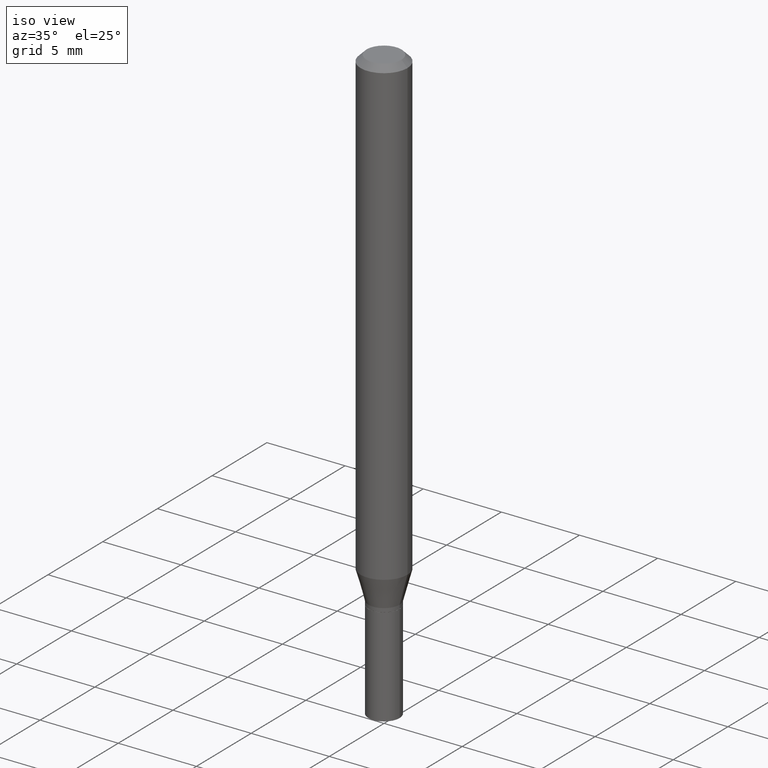
[diagram: clean part render]
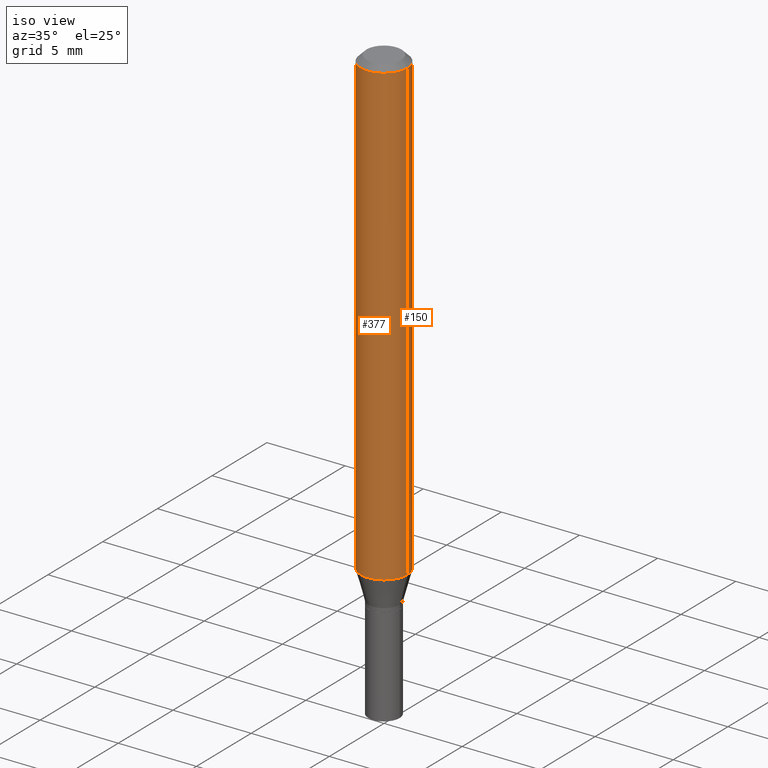
[diagram: same view with one multi-face feature highlighted, each face labeled with its STEP entity id]
A machine part, iso view. The highlighted faces form ONE feature: a constant-radius fillet chain: 2 tangent blend faces with common blend radius 1.4999 mm. The faces share edges in the B-rep.
Their STEP definitions:
[1] entity #377 (Cylinder):
#16 = CARTESIAN_POINT ( 'NONE',  ( 0.05904999999999999832, -4.492065169680809250E-15, -1.168478599090893244 ) ) ;
#19 = DIRECTION ( 'NONE',  ( 1.000000000000000000, -6.982962677686266711E-15, 0.000000000000000000 ) ) ;
#23 = AXIS2_PLACEMENT_3D ( 'NONE', #206, #232, #19 ) ;
#25 = DIRECTION ( 'NONE',  ( 1.000000000000000000, -6.982962677686267499E-15, 4.876176775795936353E-29 ) ) ;
#55 = DIRECTION ( 'NONE',  ( -2.445468806185136597E-29, 3.491481338843145583E-15, 1.000000000000000000 ) ) ;
#59 = VERTEX_POINT ( 'NONE', #16 ) ;
#60 = CARTESIAN_POINT ( 'NONE',  ( 0.000000000000000000, 0.000000000000000000, 0.000000000000000000 ) ) ;
#68 = DIRECTION ( 'NONE',  ( -2.445468806185136877E-29, 3.491481338843145188E-15, 1.000000000000000000 ) ) ;
#83 = VERTEX_POINT ( 'NONE', #98 ) ;
#98 = CARTESIAN_POINT ( 'NONE',  ( -0.05905000000000002608, -1.646471236356701803E-15, -0.01499999999999999944 ) ) ;
#100 = DIRECTION ( 'NONE',  ( 1.000000000000000000, -6.982962677686273021E-15, 0.000000000000000000 ) ) ;
#129 = AXIS2_PLACEMENT_3D ( 'NONE', #60, #352, #25 ) ;
#151 = CARTESIAN_POINT ( 'NONE',  ( 0.05905000000000001914, -4.647161662000214077E-16, -0.01499999999999999944 ) ) ;
#161 = ORIENTED_EDGE ( 'NONE', *, *, #254, .F. ) ;
#164 = VECTOR ( 'NONE', #68, 39.37007874015748143 ) ;
#166 = CYLINDRICAL_SURFACE ( 'NONE', #129, 0.05905000000000000526 ) ;
#206 = CARTESIAN_POINT ( 'NONE',  ( 3.668203209277705088E-31, -5.237222008264718399E-17, -0.01499999999999999944 ) ) ;
#226 = CIRCLE ( 'NONE', #23, 0.05905000000000001914 ) ;
#232 = DIRECTION ( 'NONE',  ( -2.445468806185136597E-29, 3.491481338843145583E-15, 1.000000000000000000 ) ) ;
#237 = EDGE_CURVE ( 'NONE', #409, #59, #261, .T. ) ;
#254 = EDGE_CURVE ( 'NONE', #409, #83, #386, .T. ) ;
#261 = CIRCLE ( 'NONE', #432, 0.05904999999999999832 ) ;
#267 = EDGE_LOOP ( 'NONE', ( #161, #273, #448, #339 ) ) ;
#269 = EDGE_CURVE ( 'NONE', #83, #444, #226, .T. ) ;
#273 = ORIENTED_EDGE ( 'NONE', *, *, #237, .T. ) ;
#280 = FACE_OUTER_BOUND ( 'NONE', #267, .T. ) ;
#292 = CARTESIAN_POINT ( 'NONE',  ( 0.05905000000000000526, -4.123439461173741313E-16, 2.879382386107500571E-30 ) ) ;
#339 = ORIENTED_EDGE ( 'NONE', *, *, #269, .F. ) ;
#346 = CARTESIAN_POINT ( 'NONE',  ( -0.05905000000000000526, 4.195754854663391971E-16, -2.904631170795522242E-30 ) ) ;
#352 = DIRECTION ( 'NONE',  ( -2.445468806185136597E-29, 3.491481338843145583E-15, 1.000000000000000000 ) ) ;
#377 = ADVANCED_FACE ( 'NONE', ( #280 ), #166, .T. ) ;
#386 = LINE ( 'NONE', #346, #466 ) ;
#409 = VERTEX_POINT ( 'NONE', #421 ) ;
#419 = CARTESIAN_POINT ( 'NONE',  ( 2.857477964771687293E-29, -4.079721223563434330E-15, -1.168478599090893244 ) ) ;
#421 = CARTESIAN_POINT ( 'NONE',  ( -0.05904999999999999832, -3.660145738097095626E-15, -1.168478599090893244 ) ) ;
#428 = EDGE_CURVE ( 'NONE', #59, #444, #464, .T. ) ;
#432 = AXIS2_PLACEMENT_3D ( 'NONE', #419, #55, #100 ) ;
#444 = VERTEX_POINT ( 'NONE', #151 ) ;
#445 = DIRECTION ( 'NONE',  ( -2.445468806185136877E-29, 3.491481338843145188E-15, 1.000000000000000000 ) ) ;
#448 = ORIENTED_EDGE ( 'NONE', *, *, #428, .T. ) ;
#464 = LINE ( 'NONE', #292, #164 ) ;
#466 = VECTOR ( 'NONE', #445, 39.37007874015748143 ) ;
[2] entity #150 (Cylinder):
#2 = EDGE_LOOP ( 'NONE', ( #207, #233, #335, #125 ) ) ;
#16 = CARTESIAN_POINT ( 'NONE',  ( 0.05904999999999999832, -4.492065169680809250E-15, -1.168478599090893244 ) ) ;
#35 = DIRECTION ( 'NONE',  ( -2.445468806185136597E-29, 3.491481338843145583E-15, 1.000000000000000000 ) ) ;
#59 = VERTEX_POINT ( 'NONE', #16 ) ;
#64 = DIRECTION ( 'NONE',  ( 1.000000000000000000, -6.982962677686266711E-15, 0.000000000000000000 ) ) ;
#68 = DIRECTION ( 'NONE',  ( -2.445468806185136877E-29, 3.491481338843145188E-15, 1.000000000000000000 ) ) ;
#83 = VERTEX_POINT ( 'NONE', #98 ) ;
#86 = CIRCLE ( 'NONE', #459, 0.05905000000000001914 ) ;
#98 = CARTESIAN_POINT ( 'NONE',  ( -0.05905000000000002608, -1.646471236356701803E-15, -0.01499999999999999944 ) ) ;
#101 = CARTESIAN_POINT ( 'NONE',  ( 3.668203209277705088E-31, -5.237222008264718399E-17, -0.01499999999999999944 ) ) ;
#125 = ORIENTED_EDGE ( 'NONE', *, *, #428, .F. ) ;
#150 = ADVANCED_FACE ( 'NONE', ( #321 ), #247, .T. ) ;
#151 = CARTESIAN_POINT ( 'NONE',  ( 0.05905000000000001914, -4.647161662000214077E-16, -0.01499999999999999944 ) ) ;
#164 = VECTOR ( 'NONE', #68, 39.37007874015748143 ) ;
#182 = DIRECTION ( 'NONE',  ( 1.000000000000000000, -6.982962677686273021E-15, 0.000000000000000000 ) ) ;
#185 = AXIS2_PLACEMENT_3D ( 'NONE', #357, #35, #359 ) ;
#186 = AXIS2_PLACEMENT_3D ( 'NONE', #210, #396, #182 ) ;
#197 = CIRCLE ( 'NONE', #186, 0.05904999999999999832 ) ;
#207 = ORIENTED_EDGE ( 'NONE', *, *, #453, .T. ) ;
#210 = CARTESIAN_POINT ( 'NONE',  ( 2.857477964771687293E-29, -4.079721223563434330E-15, -1.168478599090893244 ) ) ;
#233 = ORIENTED_EDGE ( 'NONE', *, *, #254, .T. ) ;
#247 = CYLINDRICAL_SURFACE ( 'NONE', #185, 0.05905000000000000526 ) ;
#254 = EDGE_CURVE ( 'NONE', #409, #83, #386, .T. ) ;
#291 = EDGE_CURVE ( 'NONE', #444, #83, #86, .T. ) ;
#292 = CARTESIAN_POINT ( 'NONE',  ( 0.05905000000000000526, -4.123439461173741313E-16, 2.879382386107500571E-30 ) ) ;
#321 = FACE_OUTER_BOUND ( 'NONE', #2, .T. ) ;
#335 = ORIENTED_EDGE ( 'NONE', *, *, #291, .F. ) ;
#346 = CARTESIAN_POINT ( 'NONE',  ( -0.05905000000000000526, 4.195754854663391971E-16, -2.904631170795522242E-30 ) ) ;
#357 = CARTESIAN_POINT ( 'NONE',  ( 0.000000000000000000, 0.000000000000000000, 0.000000000000000000 ) ) ;
#359 = DIRECTION ( 'NONE',  ( 1.000000000000000000, -6.982962677686267499E-15, 4.876176775795936353E-29 ) ) ;
#386 = LINE ( 'NONE', #346, #466 ) ;
#396 = DIRECTION ( 'NONE',  ( -2.445468806185136597E-29, 3.491481338843145583E-15, 1.000000000000000000 ) ) ;
#409 = VERTEX_POINT ( 'NONE', #421 ) ;
#421 = CARTESIAN_POINT ( 'NONE',  ( -0.05904999999999999832, -3.660145738097095626E-15, -1.168478599090893244 ) ) ;
#428 = EDGE_CURVE ( 'NONE', #59, #444, #464, .T. ) ;
#444 = VERTEX_POINT ( 'NONE', #151 ) ;
#445 = DIRECTION ( 'NONE',  ( -2.445468806185136877E-29, 3.491481338843145188E-15, 1.000000000000000000 ) ) ;
#452 = DIRECTION ( 'NONE',  ( -2.445468806185136597E-29, 3.491481338843145583E-15, 1.000000000000000000 ) ) ;
#453 = EDGE_CURVE ( 'NONE', #59, #409, #197, .T. ) ;
#459 = AXIS2_PLACEMENT_3D ( 'NONE', #101, #452, #64 ) ;
#464 = LINE ( 'NONE', #292, #164 ) ;
#466 = VECTOR ( 'NONE', #445, 39.37007874015748143 ) ;